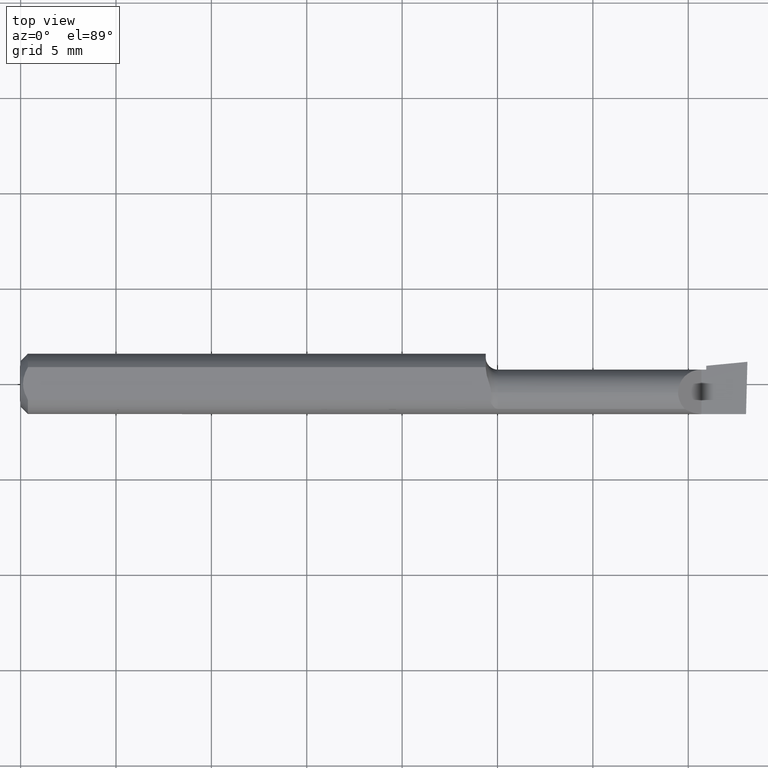
[diagram: clean part render]
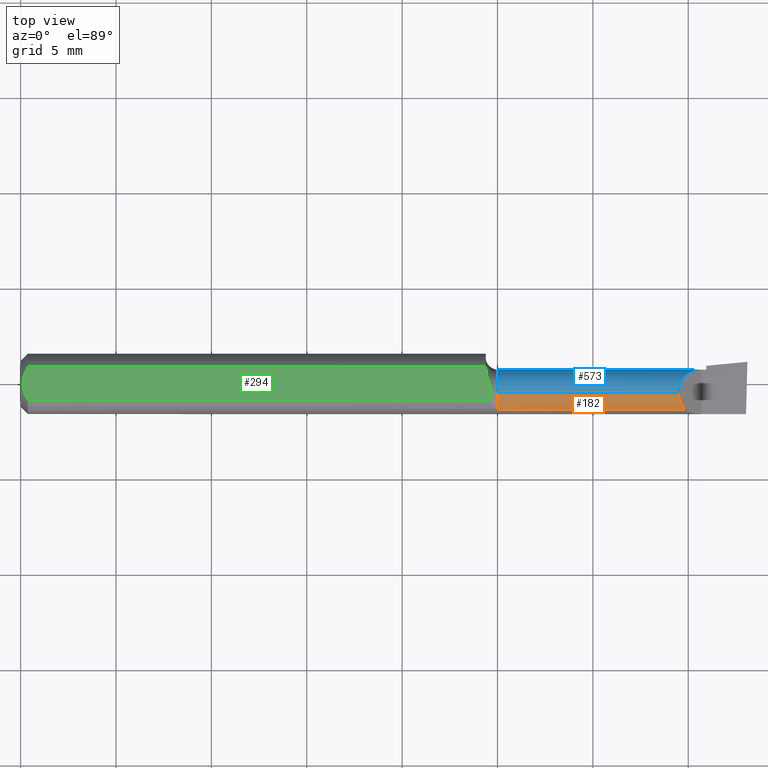
[diagram: same view with three faces highlighted in distinct colors, each labeled with its STEP entity id]
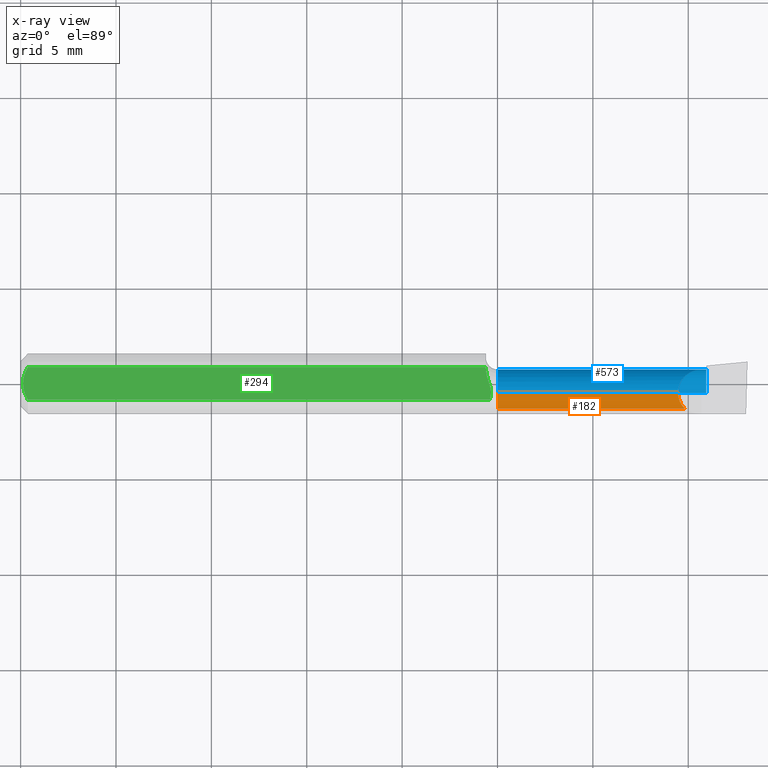
[diagram: x-ray of the same camera — body ghosted, the three highlighted faces saturated]
A machine part, top view with three faces highlighted in distinct colors.
The next image is the same camera in x-ray (body ghosted, the three faces saturated) — at least one of them is partly hidden behind the body in this view.
Their STEP definitions:

[orange] entity #182 — the highlighted cylindrical surface (edge-blend (fillet) strip) has radius 1.2205 mm, axis along (-1, -0, -0).
#4 = CARTESIAN_POINT ( 'NONE',  ( 0.9850000000000000977, -0.01839999999999999969, 0.04804999999999994692 ) ) ;
#7 = VECTOR ( 'NONE', #372, 39.37007874015748143 ) ;
#15 = DIRECTION ( 'NONE',  ( 1.000000000000000000, 0.0000000000000000000, 0.0000000000000000000 ) ) ;
#17 = VECTOR ( 'NONE', #15, 39.37007874015748143 ) ;
#22 = CARTESIAN_POINT ( 'NONE',  ( 0.9850000000000000977, -0.05210000000000009068, 0.03425072991922929050 ) ) ;
#40 = VERTEX_POINT ( 'NONE', #197 ) ;
#45 = VERTEX_POINT ( 'NONE', #22 ) ;
#51 = LINE ( 'NONE', #463, #17 ) ;
#52 = ORIENTED_EDGE ( 'NONE', *, *, #401, .F. ) ;
#62 = VERTEX_POINT ( 'NONE', #679 ) ;
#103 = CIRCLE ( 'NONE', #384, 0.04804999999999994692 ) ;
#111 = CARTESIAN_POINT ( 'NONE',  ( 1.356949999999999878, -0.01839999999999999969, 0.04804999999999997468 ) ) ;
#128 = EDGE_CURVE ( 'NONE', #40, #62, #568, .T. ) ;
#160 = EDGE_CURVE ( 'NONE', #45, #40, #51, .T. ) ;
#163 = ORIENTED_EDGE ( 'NONE', *, *, #322, .T. ) ;
#164 = AXIS2_PLACEMENT_3D ( 'NONE', #561, #195, #627 ) ;
#166 = FACE_OUTER_BOUND ( 'NONE', #331, .T. ) ;
#182 = ADVANCED_FACE ( 'NONE', ( #166 ), #381, .T. ) ;
#195 = DIRECTION ( 'NONE',  ( -1.000000000000000000, -0.0000000000000000000, -0.0000000000000000000 ) ) ;
#197 = CARTESIAN_POINT ( 'NONE',  ( 1.370749270080770632, -0.05210000000000013232, 0.03425072991922928356 ) ) ;
#237 = CARTESIAN_POINT ( 'NONE',  ( 1.356949999999999656, -0.03117368152160952810, 0.04804999999999997468 ) ) ;
#288 = CARTESIAN_POINT ( 'NONE',  ( 1.361790413321597892, -0.04299473640227075705, 0.04320958667840187062 ) ) ;
#322 = EDGE_CURVE ( 'NONE', #62, #556, #563, .T. ) ;
#331 = EDGE_LOOP ( 'NONE', ( #377, #163, #52, #495 ) ) ;
#372 = DIRECTION ( 'NONE',  ( -1.000000000000000000, -0.0000000000000000000, -0.0000000000000000000 ) ) ;
#377 = ORIENTED_EDGE ( 'NONE', *, *, #128, .T. ) ;
#381 = CYLINDRICAL_SURFACE ( 'NONE', #164, 0.04804999999999997468 ) ;
#384 = AXIS2_PLACEMENT_3D ( 'NONE', #425, #387, #657 ) ;
#387 = DIRECTION ( 'NONE',  ( -1.000000000000000000, -0.0000000000000000000, -0.0000000000000000000 ) ) ;
#401 = EDGE_CURVE ( 'NONE', #45, #556, #103, .T. ) ;
#425 = CARTESIAN_POINT ( 'NONE',  ( 0.9850000000000000977, -0.01839999999999999969, 0.0000000000000000000 ) ) ;
#463 = CARTESIAN_POINT ( 'NONE',  ( 1.199999999999999956, -0.05210000000000007681, 0.03425072991922935295 ) ) ;
#495 = ORIENTED_EDGE ( 'NONE', *, *, #160, .T. ) ;
#503 = CARTESIAN_POINT ( 'NONE',  ( 1.370749270080770632, -0.05210000000000013232, 0.03425072991922928356 ) ) ;
#556 = VERTEX_POINT ( 'NONE', #4 ) ;
#561 = CARTESIAN_POINT ( 'NONE',  ( 0.0000000000000000000, -0.01839999999999999969, 0.0000000000000000000 ) ) ;
#563 = LINE ( 'NONE', #690, #7 ) ;
#568 =( BOUNDED_CURVE ( )  B_SPLINE_CURVE ( 3, ( #503, #288, #237, #111 ),
 .UNSPECIFIED., .F., .T. ) 
 B_SPLINE_CURVE_WITH_KNOTS ( ( 4, 4 ),
 ( 5.505891808168995816, 6.283185307179586232 ),
 .UNSPECIFIED. ) 
 CURVE ( )  GEOMETRIC_REPRESENTATION_ITEM ( )  RATIONAL_B_SPLINE_CURVE ( ( 1.000000000000000000, 0.9502818019828904728, 0.9502818019828904728, 1.000000000000000000 ) ) 
 REPRESENTATION_ITEM ( '' )  );
#627 = DIRECTION ( 'NONE',  ( 0.0000000000000000000, 0.0000000000000000000, 1.000000000000000000 ) ) ;
#657 = DIRECTION ( 'NONE',  ( 0.0000000000000000000, 0.0000000000000000000, 1.000000000000000000 ) ) ;
#679 = CARTESIAN_POINT ( 'NONE',  ( 1.356949999999999878, -0.01839999999999999969, 0.04804999999999997468 ) ) ;
#690 = CARTESIAN_POINT ( 'NONE',  ( 0.0000000000000000000, -0.01839999999999999969, 0.04804999999999997468 ) ) ;

[blue] entity #573 — the highlighted cylindrical surface (edge-blend (fillet) strip) has radius 1.2205 mm, axis along (-1, -0, -0).
#2 = ORIENTED_EDGE ( 'NONE', *, *, #713, .F. ) ;
#4 = CARTESIAN_POINT ( 'NONE',  ( 0.9850000000000000977, -0.01839999999999999969, 0.04804999999999994692 ) ) ;
#7 = VECTOR ( 'NONE', #372, 39.37007874015748143 ) ;
#8 = AXIS2_PLACEMENT_3D ( 'NONE', #80, #571, #630 ) ;
#33 = ORIENTED_EDGE ( 'NONE', *, *, #229, .T. ) ;
#46 = EDGE_CURVE ( 'NONE', #382, #282, #299, .T. ) ;
#47 = EDGE_LOOP ( 'NONE', ( #33, #523, #2, #641, #628, #123, #600, #438 ) ) ;
#49 = CARTESIAN_POINT ( 'NONE',  ( 0.0000000000000000000, -0.01839999999999999275, -0.04804999999999997468 ) ) ;
#56 = CARTESIAN_POINT ( 'NONE',  ( 1.405000000000000249, 0.02964999999999991601, 1.163414459189982046E-17 ) ) ;
#62 = VERTEX_POINT ( 'NONE', #679 ) ;
#67 = CARTESIAN_POINT ( 'NONE',  ( 1.356949999999999878, -0.01839999999999999969, 0.04804999999999997468 ) ) ;
#72 = CARTESIAN_POINT ( 'NONE',  ( 2.249639673992775738E-32, 0.02964999999999996458, 1.836970198721025250E-16 ) ) ;
#78 = AXIS2_PLACEMENT_3D ( 'NONE', #478, #526, #586 ) ;
#80 = CARTESIAN_POINT ( 'NONE',  ( 0.0000000000000000000, -0.01839999999999999969, 0.0000000000000000000 ) ) ;
#105 = EDGE_CURVE ( 'NONE', #62, #142, #424, .T. ) ;
#110 = CARTESIAN_POINT ( 'NONE',  ( 1.415000000000000036, 0.02964999999999999927, 1.836970198721026483E-16 ) ) ;
#123 = ORIENTED_EDGE ( 'NONE', *, *, #592, .T. ) ;
#126 = CYLINDRICAL_SURFACE ( 'NONE', #8, 0.04804999999999997468 ) ;
#142 = VERTEX_POINT ( 'NONE', #337 ) ;
#159 = LINE ( 'NONE', #72, #375 ) ;
#162 = AXIS2_PLACEMENT_3D ( 'NONE', #242, #615, #296 ) ;
#191 = CIRCLE ( 'NONE', #162, 0.04804999999999997468 ) ;
#193 = DIRECTION ( 'NONE',  ( -1.000000000000000000, -0.0000000000000000000, -0.0000000000000000000 ) ) ;
#203 = CARTESIAN_POINT ( 'NONE',  ( 1.415000000000000036, 0.02286474879319036826, -0.02461753454420024384 ) ) ;
#216 = CARTESIAN_POINT ( 'NONE',  ( 0.9850000000000000977, -0.01839999999999999275, -0.04804999999999994692 ) ) ;
#226 = CARTESIAN_POINT ( 'NONE',  ( 1.356949999999999656, 0.009747038327972766536, 0.04804999999999997468 ) ) ;
#229 = EDGE_CURVE ( 'NONE', #587, #231, #665, .T. ) ;
#231 = VERTEX_POINT ( 'NONE', #304 ) ;
#242 = CARTESIAN_POINT ( 'NONE',  ( 1.415000000000000036, -0.01839999999999999969, 0.0000000000000000000 ) ) ;
#245 = DIRECTION ( 'NONE',  ( 1.000000000000000000, 0.0000000000000000000, 0.0000000000000000000 ) ) ;
#256 = VECTOR ( 'NONE', #537, 39.37007874015748143 ) ;
#262 = CARTESIAN_POINT ( 'NONE',  ( 1.415000000000000036, -0.01839999999999999969, 0.0000000000000000000 ) ) ;
#264 = DIRECTION ( 'NONE',  ( 0.0000000000000000000, 0.0000000000000000000, 1.000000000000000000 ) ) ;
#282 = VERTEX_POINT ( 'NONE', #203 ) ;
#296 = DIRECTION ( 'NONE',  ( 0.0000000000000000000, 0.0000000000000000000, 1.000000000000000000 ) ) ;
#299 = CIRCLE ( 'NONE', #552, 0.04805000000000000243 ) ;
#303 = DIRECTION ( 'NONE',  ( 0.0000000000000000000, 0.0000000000000000000, 1.000000000000000000 ) ) ;
#304 = CARTESIAN_POINT ( 'NONE',  ( 1.415000000000000036, -0.01839999999999999969, -0.04804999999999998855 ) ) ;
#322 = EDGE_CURVE ( 'NONE', #62, #556, #563, .T. ) ;
#337 = CARTESIAN_POINT ( 'NONE',  ( 1.405000000000000249, 0.02964999999999991601, 1.163414459189982046E-17 ) ) ;
#356 = CARTESIAN_POINT ( 'NONE',  ( 1.415000000000000036, 0.007456147106387241673, -0.04050015008383130860 ) ) ;
#372 = DIRECTION ( 'NONE',  ( -1.000000000000000000, -0.0000000000000000000, -0.0000000000000000000 ) ) ;
#375 = VECTOR ( 'NONE', #245, 39.37007874015748143 ) ;
#382 = VERTEX_POINT ( 'NONE', #110 ) ;
#388 = CARTESIAN_POINT ( 'NONE',  ( 1.376852961672026865, 0.02964999999999997499, 0.02814703832797277316 ) ) ;
#394 = EDGE_CURVE ( 'NONE', #231, #428, #415, .T. ) ;
#412 = AXIS2_PLACEMENT_3D ( 'NONE', #262, #644, #264 ) ;
#415 = LINE ( 'NONE', #49, #256 ) ;
#424 =( BOUNDED_CURVE ( )  B_SPLINE_CURVE ( 3, ( #67, #226, #388, #56 ),
 .UNSPECIFIED., .F., .T. ) 
 B_SPLINE_CURVE_WITH_KNOTS ( ( 4, 4 ),
 ( 0.0000000000000000000, 1.570796326794896558 ),
 .UNSPECIFIED. ) 
 CURVE ( )  GEOMETRIC_REPRESENTATION_ITEM ( )  RATIONAL_B_SPLINE_CURVE ( ( 1.000000000000000000, 0.8047378541243649375, 0.8047378541243649375, 1.000000000000000000 ) ) 
 REPRESENTATION_ITEM ( '' )  );
#428 = VERTEX_POINT ( 'NONE', #216 ) ;
#438 = ORIENTED_EDGE ( 'NONE', *, *, #651, .F. ) ;
#478 = CARTESIAN_POINT ( 'NONE',  ( 0.9850000000000000977, -0.01839999999999999969, 0.0000000000000000000 ) ) ;
#523 = ORIENTED_EDGE ( 'NONE', *, *, #394, .T. ) ;
#526 = DIRECTION ( 'NONE',  ( -1.000000000000000000, -0.0000000000000000000, -0.0000000000000000000 ) ) ;
#537 = DIRECTION ( 'NONE',  ( -1.000000000000000000, -0.0000000000000000000, -0.0000000000000000000 ) ) ;
#544 = FACE_OUTER_BOUND ( 'NONE', #47, .T. ) ;
#552 = AXIS2_PLACEMENT_3D ( 'NONE', #685, #193, #303 ) ;
#556 = VERTEX_POINT ( 'NONE', #4 ) ;
#563 = LINE ( 'NONE', #690, #7 ) ;
#571 = DIRECTION ( 'NONE',  ( -1.000000000000000000, -0.0000000000000000000, -0.0000000000000000000 ) ) ;
#573 = ADVANCED_FACE ( 'NONE', ( #544 ), #126, .T. ) ;
#586 = DIRECTION ( 'NONE',  ( 0.0000000000000000000, 0.0000000000000000000, 1.000000000000000000 ) ) ;
#587 = VERTEX_POINT ( 'NONE', #356 ) ;
#592 = EDGE_CURVE ( 'NONE', #142, #382, #159, .T. ) ;
#600 = ORIENTED_EDGE ( 'NONE', *, *, #46, .T. ) ;
#615 = DIRECTION ( 'NONE',  ( 1.000000000000000000, 0.0000000000000000000, 0.0000000000000000000 ) ) ;
#628 = ORIENTED_EDGE ( 'NONE', *, *, #105, .T. ) ;
#630 = DIRECTION ( 'NONE',  ( 0.0000000000000000000, 0.0000000000000000000, 1.000000000000000000 ) ) ;
#641 = ORIENTED_EDGE ( 'NONE', *, *, #322, .F. ) ;
#644 = DIRECTION ( 'NONE',  ( -1.000000000000000000, -0.0000000000000000000, -0.0000000000000000000 ) ) ;
#651 = EDGE_CURVE ( 'NONE', #587, #282, #191, .T. ) ;
#663 = CIRCLE ( 'NONE', #78, 0.04804999999999994692 ) ;
#665 = CIRCLE ( 'NONE', #412, 0.04805000000000000243 ) ;
#679 = CARTESIAN_POINT ( 'NONE',  ( 1.356949999999999878, -0.01839999999999999969, 0.04804999999999997468 ) ) ;
#685 = CARTESIAN_POINT ( 'NONE',  ( 1.415000000000000036, -0.01839999999999999969, 0.0000000000000000000 ) ) ;
#690 = CARTESIAN_POINT ( 'NONE',  ( 0.0000000000000000000, -0.01839999999999999969, 0.04804999999999997468 ) ) ;
#713 = EDGE_CURVE ( 'NONE', #556, #428, #663, .T. ) ;

[green] entity #294 — the highlighted planar face has unit normal (0, -0, -1).
#6 = EDGE_CURVE ( 'NONE', #321, #339, #693, .T. ) ;
#19 = VERTEX_POINT ( 'NONE', #25 ) ;
#21 = CARTESIAN_POINT ( 'NONE',  ( 0.0000000000000000000, -0.03386738844375222768, 0.05234999999999997988 ) ) ;
#25 = CARTESIAN_POINT ( 'NONE',  ( 0.9709817975471366491, -0.01840000000000274055, 0.05235000000000000070 ) ) ;
#29 = CARTESIAN_POINT ( 'NONE',  ( 0.9600000000000001865, 0.03254879782683781780, 0.05235000000000000070 ) ) ;
#36 = CARTESIAN_POINT ( 'NONE',  ( 0.9678289663216181893, -0.001899322570691524366, 0.05235000000000000070 ) ) ;
#41 = CARTESIAN_POINT ( 'NONE',  ( 0.9657332775895889343, 0.004426912553965690889, 0.05234999999999998682 ) ) ;
#61 = CARTESIAN_POINT ( 'NONE',  ( 0.9706711879428688849, -0.02367561104898163044, 0.05235000000000000070 ) ) ;
#63 = ORIENTED_EDGE ( 'NONE', *, *, #6, .F. ) ;
#65 = AXIS2_PLACEMENT_3D ( 'NONE', #414, #636, #365 ) ;
#66 = CARTESIAN_POINT ( 'NONE',  ( 0.01218518006020415795, 0.02868529347538067639, 0.05235000000000000070 ) ) ;
#88 = CARTESIAN_POINT ( 'NONE',  ( 0.01500000000000185039, -0.03386738844380016850, 0.05235000000000000070 ) ) ;
#96 = ORIENTED_EDGE ( 'NONE', *, *, #447, .F. ) ;
#102 = ORIENTED_EDGE ( 'NONE', *, *, #557, .F. ) ;
#108 = CARTESIAN_POINT ( 'NONE',  ( 0.01216137397042175820, -0.02864146636719541034, 0.05235000000000000070 ) ) ;
#114 = CARTESIAN_POINT ( 'NONE',  ( 0.9709817975474690499, -0.02106709414031691582, 0.05235000000000000070 ) ) ;
#145 = VECTOR ( 'NONE', #518, 39.37007874015748143 ) ;
#167 = VECTOR ( 'NONE', #451, 39.37007874015748143 ) ;
#179 = CARTESIAN_POINT ( 'NONE',  ( 0.004999999999999268051, 0.005945714695019511074, 0.05235000000000000070 ) ) ;
#180 = B_SPLINE_CURVE_WITH_KNOTS ( 'NONE', 3,
 ( #588, #108, #376, #602, #283, #334 ),
 .UNSPECIFIED., .F., .F.,
 ( 4, 2, 4 ),
 ( 0.002133667072902290657, 0.002585433046183636171, 0.003037199019464981685 ),
 .UNSPECIFIED. ) ;
#227 = VERTEX_POINT ( 'NONE', #258 ) ;
#234 = CARTESIAN_POINT ( 'NONE',  ( 0.9681439896686973023, -0.03386738844377056717, 0.05235000000000000070 ) ) ;
#239 = CARTESIAN_POINT ( 'NONE',  ( 0.9600000000000001865, 0.1123499999999999915, 0.05234999999999998682 ) ) ;
#258 = CARTESIAN_POINT ( 'NONE',  ( 0.004999999999989931769, 7.898418181085889318E-16, 0.05235000000000000070 ) ) ;
#263 = CARTESIAN_POINT ( 'NONE',  ( 0.9681439896686973023, -0.03386738844377056717, 0.05235000000000000070 ) ) ;
#265 = CARTESIAN_POINT ( 'NONE',  ( 0.9623037607715416719, 0.01498942864105881276, 0.05235000000000000764 ) ) ;
#283 = CARTESIAN_POINT ( 'NONE',  ( 0.004999999999998879473, -0.005957634400466955450, 0.05235000000000000070 ) ) ;
#292 = LINE ( 'NONE', #21, #601 ) ;
#293 = B_SPLINE_CURVE_WITH_KNOTS ( 'NONE', 3,
 ( #703, #114, #61, #502, #555, #234 ),
 .UNSPECIFIED., .F., .F.,
 ( 4, 2, 4 ),
 ( 0.0004198066361325438834, 0.0006196367099741922988, 0.0008194667838158406058 ),
 .UNSPECIFIED. ) ;
#294 = ADVANCED_FACE ( 'NONE', ( #543 ), #413, .F. ) ;
#314 = CARTESIAN_POINT ( 'NONE',  ( 0.9664444859557655976, 0.002321921504987204624, 0.05235000000000000070 ) ) ;
#320 = ORIENTED_EDGE ( 'NONE', *, *, #710, .F. ) ;
#321 = VERTEX_POINT ( 'NONE', #419 ) ;
#334 = CARTESIAN_POINT ( 'NONE',  ( 0.004999999999989931769, 7.898418181085889318E-16, 0.05235000000000000070 ) ) ;
#339 = VERTEX_POINT ( 'NONE', #430 ) ;
#343 = B_SPLINE_CURVE_WITH_KNOTS ( 'NONE', 3,
 ( #29, #582, #265, #41, #314, #36, #473, #420, #536, #534 ),
 .UNSPECIFIED., .F., .F.,
 ( 4, 2, 2, 2, 4 ),
 ( 0.008710904206567280858, 0.009350419755586234644, 0.009510298642840973524, 0.009670177530095712404, 0.009989935304605188429 ),
 .UNSPECIFIED. ) ;
#365 = DIRECTION ( 'NONE',  ( 0.0000000000000000000, 1.000000000000000000, -7.598598113218357399E-17 ) ) ;
#376 = CARTESIAN_POINT ( 'NONE',  ( 0.009678036133109307534, -0.02325481837211496039, 0.05235000000000000070 ) ) ;
#393 = CARTESIAN_POINT ( 'NONE',  ( 0.009669996313769784607, 0.02323004575534281385, 0.05234999999999998682 ) ) ;
#398 = CARTESIAN_POINT ( 'NONE',  ( 0.004999999999989931769, 7.898418181085889318E-16, 0.05235000000000000070 ) ) ;
#413 = PLANE ( 'NONE',  #65 ) ;
#414 = CARTESIAN_POINT ( 'NONE',  ( 1.500000000000000222, 0.1123499999999999915, 0.05234999999999998682 ) ) ;
#417 = VERTEX_POINT ( 'NONE', #485 ) ;
#419 = CARTESIAN_POINT ( 'NONE',  ( 0.9600000000000001865, 0.03386738844375224156, 0.05235000000000000070 ) ) ;
#420 = CARTESIAN_POINT ( 'NONE',  ( 0.9701689947020403215, -0.01001121285792180154, 0.05235000000000001458 ) ) ;
#430 = CARTESIAN_POINT ( 'NONE',  ( 0.9600000000000001865, 0.03254879782683781780, 0.05235000000000000070 ) ) ;
#447 = EDGE_CURVE ( 'NONE', #629, #227, #180, .T. ) ;
#451 = DIRECTION ( 'NONE',  ( 0.0000000000000000000, -1.000000000000000000, 7.598598113218357399E-17 ) ) ;
#473 = CARTESIAN_POINT ( 'NONE',  ( 0.9684726880402972915, -0.003926822060867410022, 0.05235000000000000070 ) ) ;
#485 = CARTESIAN_POINT ( 'NONE',  ( 0.01500000000000000465, 0.03386738844375223462, 0.05234999999999997988 ) ) ;
#492 = EDGE_CURVE ( 'NONE', #19, #671, #293, .T. ) ;
#502 = CARTESIAN_POINT ( 'NONE',  ( 0.9696390223050100898, -0.02881514531779550206, 0.05234999999999998682 ) ) ;
#506 = EDGE_LOOP ( 'NONE', ( #320, #63, #102, #595, #96, #653, #577 ) ) ;
#518 = DIRECTION ( 'NONE',  ( 1.000000000000000000, 0.0000000000000000000, 0.0000000000000000000 ) ) ;
#534 = CARTESIAN_POINT ( 'NONE',  ( 0.9709817975471366491, -0.01840000000000274055, 0.05235000000000000070 ) ) ;
#536 = CARTESIAN_POINT ( 'NONE',  ( 0.9709817975474823726, -0.01413225355780887635, 0.05235000000000000070 ) ) ;
#541 = EDGE_CURVE ( 'NONE', #227, #417, #660, .T. ) ;
#543 = FACE_OUTER_BOUND ( 'NONE', #506, .T. ) ;
#553 = CARTESIAN_POINT ( 'NONE',  ( 0.01500000000000000465, 0.03386738844375223462, 0.05234999999999997988 ) ) ;
#555 = CARTESIAN_POINT ( 'NONE',  ( 0.9689259844007445110, -0.03134776909451144483, 0.05235000000000000070 ) ) ;
#557 = EDGE_CURVE ( 'NONE', #417, #321, #697, .T. ) ;
#577 = ORIENTED_EDGE ( 'NONE', *, *, #492, .F. ) ;
#581 = EDGE_CURVE ( 'NONE', #671, #629, #292, .T. ) ;
#582 = CARTESIAN_POINT ( 'NONE',  ( 0.9599999999999991873, 0.02370330699131453778, 0.05234999999999997988 ) ) ;
#588 = CARTESIAN_POINT ( 'NONE',  ( 0.01500000000000185039, -0.03386738844380016850, 0.05235000000000000070 ) ) ;
#595 = ORIENTED_EDGE ( 'NONE', *, *, #541, .F. ) ;
#601 = VECTOR ( 'NONE', #686, 39.37007874015748143 ) ;
#602 = CARTESIAN_POINT ( 'NONE',  ( 0.006057557792978140489, -0.01187252718384441616, 0.05234999999999998682 ) ) ;
#629 = VERTEX_POINT ( 'NONE', #88 ) ;
#636 = DIRECTION ( 'NONE',  ( 0.0000000000000000000, -7.598598113218357399E-17, -1.000000000000000000 ) ) ;
#653 = ORIENTED_EDGE ( 'NONE', *, *, #581, .F. ) ;
#659 = CARTESIAN_POINT ( 'NONE',  ( 0.006064493299689842180, 0.01189382783781397189, 0.05235000000000000070 ) ) ;
#660 = B_SPLINE_CURVE_WITH_KNOTS ( 'NONE', 3,
 ( #398, #179, #659, #393, #66, #553 ),
 .UNSPECIFIED., .F., .F.,
 ( 4, 2, 4 ),
 ( 0.003037199019464981685, 0.003488061124369676216, 0.003938923229274370746 ),
 .UNSPECIFIED. ) ;
#666 = CARTESIAN_POINT ( 'NONE',  ( 0.0000000000000000000, 0.03386738844375223462, 0.05234999999999997988 ) ) ;
#671 = VERTEX_POINT ( 'NONE', #263 ) ;
#686 = DIRECTION ( 'NONE',  ( -1.000000000000000000, -0.0000000000000000000, -0.0000000000000000000 ) ) ;
#693 = LINE ( 'NONE', #239, #167 ) ;
#697 = LINE ( 'NONE', #666, #145 ) ;
#703 = CARTESIAN_POINT ( 'NONE',  ( 0.9709817975471366491, -0.01840000000000274055, 0.05235000000000000070 ) ) ;
#710 = EDGE_CURVE ( 'NONE', #339, #19, #343, .T. ) ;